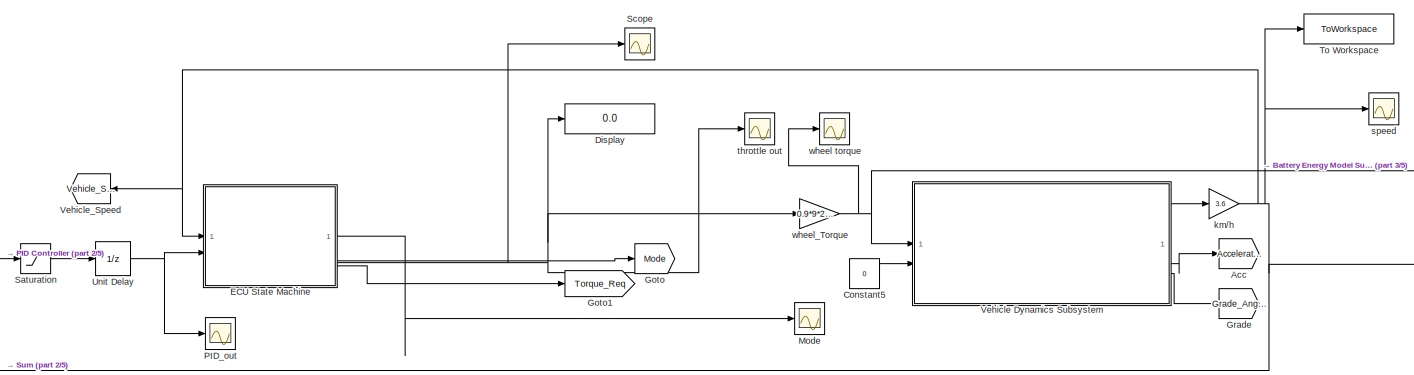
[diagram: root canvas - part 1/5, top center region]
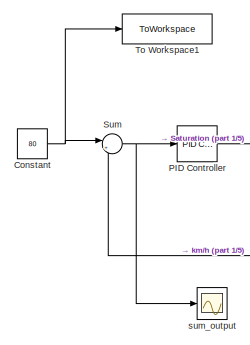
[diagram: root canvas - part 2/5, top left region]
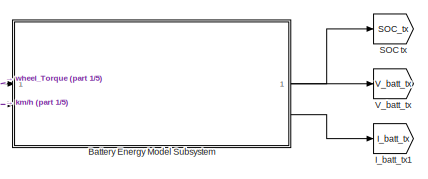
[diagram: root canvas - part 3/5, top right region]
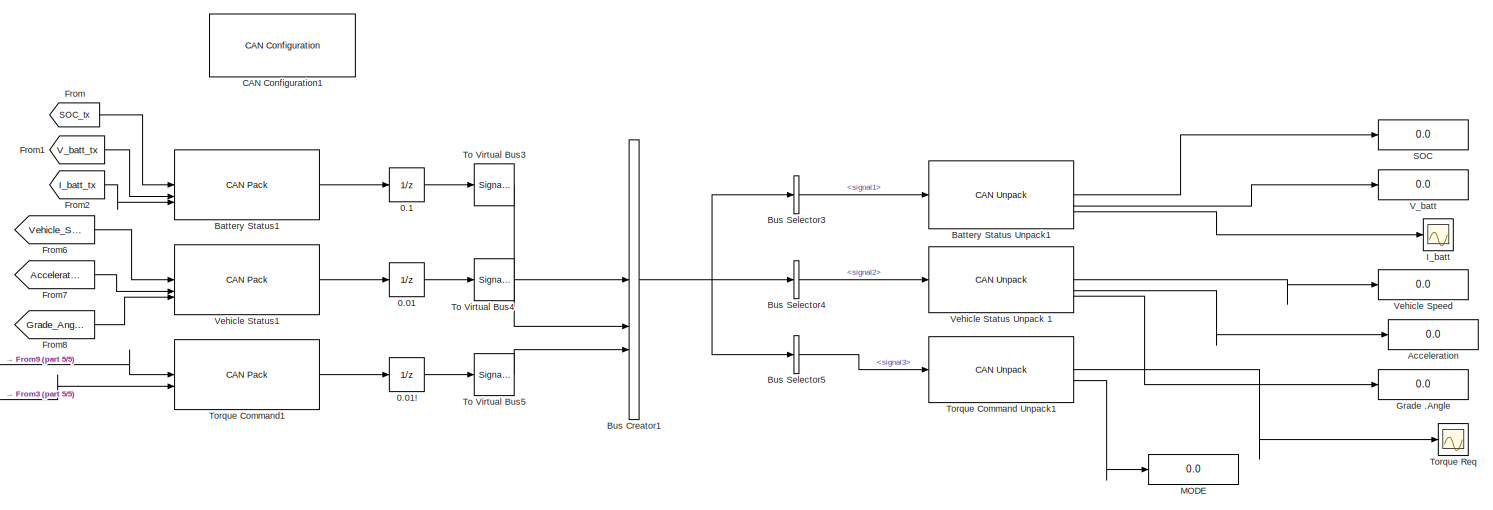
[diagram: root canvas - part 4/5, bottom center region]
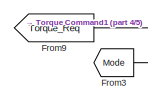
[diagram: root canvas - part 5/5, bottom left region]
MODEL slx_78d099251501
KIND model
CONFIG AbsTol = auto
CONFIG EnableMultiTasking = off
CONFIG FixedStep = 0.01
CONFIG MaxStep = auto
CONFIG MinStep = auto
CONFIG RelTol = 1e-3
CONFIG SampleTimeConstraint = Unconstrained
CONFIG SolverName = ode3
CONFIG StartTime = 0.0
CONFIG StopTime = 100
BLOCK [UnitDelay] 0.01
  HasFrameUpgradeWarning = on
  InitialCondition = 0.01
  SampleTime = -1
BLOCK [UnitDelay] 0.01!
  HasFrameUpgradeWarning = on
  InitialCondition = 0.1
  SampleTime = -1
BLOCK [UnitDelay] 0.1
  HasFrameUpgradeWarning = on
  InitialCondition = 0.1
  SampleTime = -1
BLOCK [Goto] Acc
  GotoTag = Acceleration
BLOCK [Display] Acceleration
  Decimation = 1
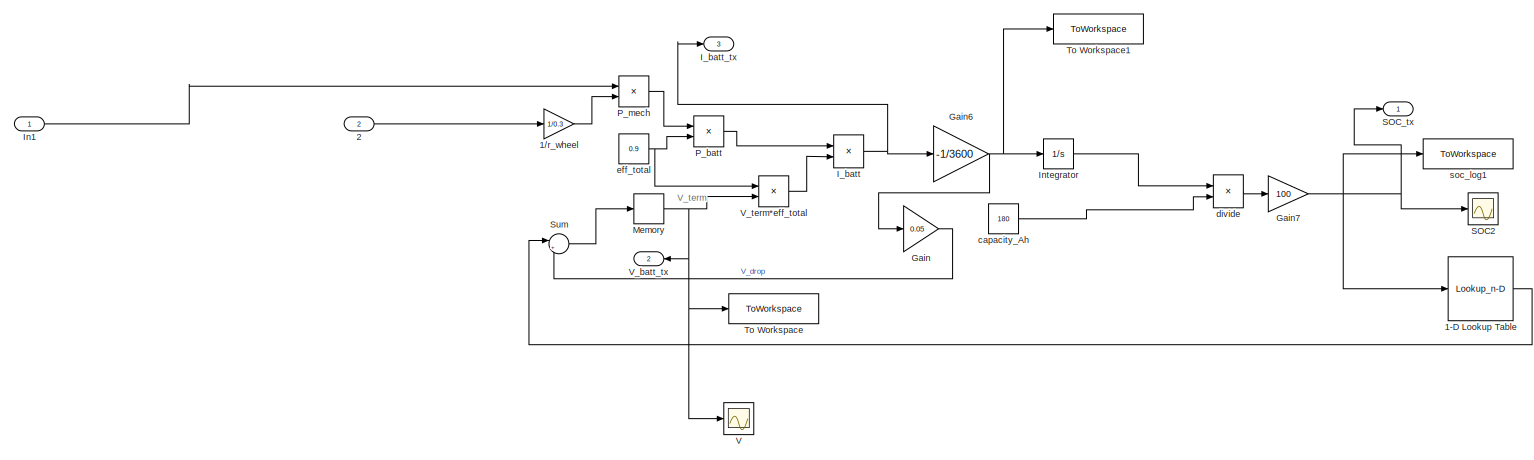
[diagram: Battery Energy Model Subsystem - part 1/1, most of the canvas]
BLOCK [SubSystem] Battery Energy Model Subsystem
BLOCK [Lookup_n-D] Battery Energy Model Subsystem/1-D Lookup Table
  BreakpointsForDimension1 = [10 20 40 60 80 100]
  InputPortMap = u0
  InternalRulePriority = Speed
  NumberOfTableDimensions = 1
  RndMeth = Simplest
  Table = [325 332 342 350 356 360]
BLOCK [Gain] Battery Energy Model Subsystem/1//r_wheel
  Gain = 1/0.3
BLOCK [Inport] Battery Energy Model Subsystem/2
  Port = 2
BLOCK [Gain] Battery Energy Model Subsystem/Gain
  Gain = 0.05
BLOCK [Gain] Battery Energy Model Subsystem/Gain6
  Gain = -1/3600
BLOCK [Gain] Battery Energy Model Subsystem/Gain7
  Gain = 100
BLOCK [Product] Battery Energy Model Subsystem/I_batt
  Inputs = */
  RndMeth = Zero
  SaturateOnIntegerOverflow = on
BLOCK [Outport] Battery Energy Model Subsystem/I_batt_tx
  Port = 3
BLOCK [Inport] Battery Energy Model Subsystem/In1
BLOCK [Integrator] Battery Energy Model Subsystem/Integrator
  InitialCondition = 180
BLOCK [Memory] Battery Energy Model Subsystem/Memory
  InitialCondition = 0.01
BLOCK [Product] Battery Energy Model Subsystem/P_batt
  Inputs = */
BLOCK [Product] Battery Energy Model Subsystem/P_mech
BLOCK [Scope] Battery Energy Model Subsystem/SOC2
  Floating = off
  NumInputPorts = 1
  ScopeSpecificationString = Simulink.scopes.TimeScopeBlockCfg('CurrentConfiguration', extmgr.ConfigurationSet(extmgr.Configuration('Core','General UI',true),extmgr.Configuration('Core','Source UI',true),extmgr.Configuration('Sources','WiredSimulink',true,'DataLoggingVariableName','ScopeData1'),extmgr.Configuration('Visuals','Time Domain',true,'SerializedDisplays',{struct('MinYLimReal','90.00000','MaxYLimReal','110.00000','YL...<+1408ch>
BLOCK [Outport] Battery Energy Model Subsystem/SOC_tx
BLOCK [Sum] Battery Energy Model Subsystem/Sum
  Inputs = |+-
BLOCK [ToWorkspace] Battery Energy Model Subsystem/To Workspace
  FixptAsFi = on
  MaxDataPoints = inf
  SampleTime = -1
  VariableName = Vterm_log
BLOCK [ToWorkspace] Battery Energy Model Subsystem/To Workspace1
  MaxDataPoints = inf
  SampleTime = -1
  VariableName = I_batt
BLOCK [Scope] Battery Energy Model Subsystem/V
  Floating = off
  NumInputPorts = 1
  ScopeSpecificationString = Simulink.scopes.TimeScopeBlockCfg('CurrentConfiguration', extmgr.ConfigurationSet(extmgr.Configuration('Core','General UI',true),extmgr.Configuration('Core','Source UI',true),extmgr.Configuration('Sources','WiredSimulink',true,'DataLoggingVariableName','ScopeData1'),extmgr.Configuration('Visuals','Time Domain',true,'SerializedDisplays',{struct('MinYLimReal','-44.98875','MaxYLimReal','404.99875','Y...<+1375ch>
BLOCK [Outport] Battery Energy Model Subsystem/V_batt_tx
  NameLocation = top
  Port = 2
BLOCK [Product] Battery Energy Model Subsystem/V_term*eff_total
BLOCK [Constant] Battery Energy Model Subsystem/capacity_Ah
  Value = 180
BLOCK [Product] Battery Energy Model Subsystem/divide
  Inputs = */
  RndMeth = Zero
  SaturateOnIntegerOverflow = on
BLOCK [Constant] Battery Energy Model Subsystem/eff_total
  Value = 0.9
BLOCK [ToWorkspace] Battery Energy Model Subsystem/soc_log1
  MaxDataPoints = inf
  SampleTime = -1
  VariableName = soc_log1
BLOCK [Reference] Battery Status Unpack1  REF=canmsglib/CAN Unpack
  LibrarySourceBlock = canlib/CAN Unpack
  SourceBlock = canmsglib/CAN Unpack
  SourceType = CAN Unpack
BLOCK [Reference] Battery Status1  REF=canmsglib/CAN Pack
  LibrarySourceBlock = canlib/CAN Pack
  SourceBlock = canmsglib/CAN Pack
  SourceType = CAN Pack
BLOCK [BusCreator] Bus Creator1
  DisplayOption = bar
  InheritFromInputs = on
  Inputs = 3
BLOCK [BusSelector] Bus Selector3
  OutputSignals = signal1
BLOCK [BusSelector] Bus Selector4
  OutputSignals = signal2
BLOCK [BusSelector] Bus Selector5
  OutputSignals = signal3
BLOCK [Reference] CAN Configuration1  REF=canlib/CAN Configuration
  SourceBlock = canlib/CAN Configuration
  SourceType = CAN Configuration
BLOCK [Constant] Constant
  Value = 80
BLOCK [Constant] Constant5
  Value = 0
BLOCK [Display] Display
  Decimation = 1
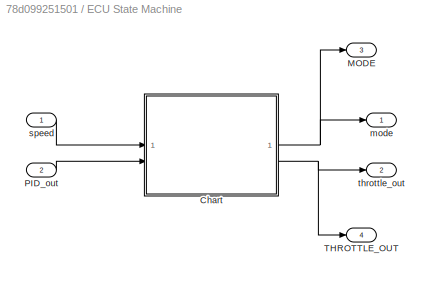
BLOCK [SubSystem] ECU State Machine
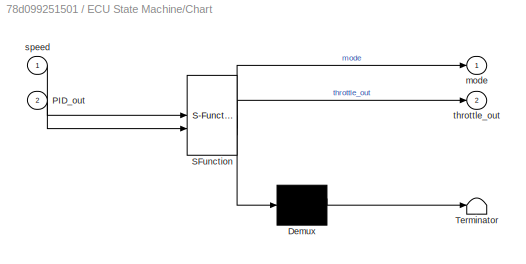
BLOCK [SubSystem] ECU State Machine/Chart
  ErrorFcn = Stateflow.Translate.translate
  PermitHierarchicalResolution = ExplicitOnly
  SFBlockType = Chart
  TreatAsAtomicUnit = on
BLOCK [Demux] ECU State Machine/Chart/ Demux 
  Outputs = 1
BLOCK [S-Function] ECU State Machine/Chart/ SFunction 
  EnableBusSupport = on
  FunctionName = sf_sfun
  PortCounts = [2 3]
  SFcnIsStateOwnerBlock = off
  SFunctionDeploymentMode = off
  Tag = Stateflow S-Function 3
BLOCK [Terminator] ECU State Machine/Chart/ Terminator 
BLOCK [Inport] ECU State Machine/Chart/PID_out
  Port = 2
BLOCK [Outport] ECU State Machine/Chart/mode
BLOCK [Inport] ECU State Machine/Chart/speed
BLOCK [Outport] ECU State Machine/Chart/throttle_out
  Port = 2
BLOCK [Outport] ECU State Machine/MODE
  Port = 3
BLOCK [Inport] ECU State Machine/PID_out
  Port = 2
BLOCK [Outport] ECU State Machine/THROTTLE_OUT
  Port = 4
BLOCK [Outport] ECU State Machine/mode
BLOCK [Inport] ECU State Machine/speed
BLOCK [Outport] ECU State Machine/throttle_out
  Port = 2
BLOCK [From] From
  GotoTag = SOC_tx
BLOCK [From] From1
  GotoTag = V_batt_tx
BLOCK [From] From2
  GotoTag = I_batt_tx
BLOCK [From] From3
  GotoTag = Mode
BLOCK [From] From6
  GotoTag = Vehicle_Speed
BLOCK [From] From7
  GotoTag = Acceleration
BLOCK [From] From8
  GotoTag = Grade_Angle
BLOCK [From] From9
  GotoTag = Torque_Req
BLOCK [Goto] Goto
  GotoTag = Mode
BLOCK [Goto] Goto1
  GotoTag = Torque_Req
BLOCK [Goto] Grade
  GotoTag = Grade_Angle
BLOCK [Display] Grade .Angle
  Decimation = 1
BLOCK [Scope] I_batt
  Floating = off
  NumInputPorts = 1
  ScopeSpecificationString = Simulink.scopes.TimeScopeBlockCfg('CurrentConfiguration', extmgr.ConfigurationSet(extmgr.Configuration('Core','General UI',true),extmgr.Configuration('Core','Source UI',true),extmgr.Configuration('Sources','WiredSimulink',true,'DataLoggingVariableName','ScopeData2'),extmgr.Configuration('Visuals','Time Domain',true,'SerializedDisplays',{struct('MinYLimReal','-55.54375','MaxYLimReal','499.89375','Y...<+1393ch>
BLOCK [Goto] I_batt_tx1
  GotoTag = I_batt_tx
BLOCK [Display] MODE
  Decimation = 1
BLOCK [Scope] Mode
  Floating = off
  NumInputPorts = 1
  ScopeSpecificationString = Simulink.scopes.TimeScopeBlockCfg('CurrentConfiguration', extmgr.ConfigurationSet(extmgr.Configuration('Core','General UI',true),extmgr.Configuration('Core','Source UI',true),extmgr.Configuration('Sources','WiredSimulink',true,'DataLoggingVariableName','ScopeData1'),extmgr.Configuration('Visuals','Time Domain',true,'SerializedDisplays',{struct('MinYLimReal','-0.375','MaxYLimReal','3.375','YLabelRe...<+1404ch>
BLOCK [Reference] PID Controller  REF=slpidlib/PID Controller
  LibrarySourceBlock = simulink/Continuous/PID Controller
  SourceBlock = slpidlib/PID Controller
  SourceType = PID 1dof
BLOCK [Scope] PID_out
  Floating = off
  NumInputPorts = 1
  ScopeSpecificationString = Simulink.scopes.TimeScopeBlockCfg('CurrentConfiguration', extmgr.ConfigurationSet(extmgr.Configuration('Core','General UI',true),extmgr.Configuration('Core','Source UI',true),extmgr.Configuration('Sources','WiredSimulink',true,'DataLoggingVariableName','ScopeData3'),extmgr.Configuration('Visuals','Time Domain',true,'SerializedDisplays',{struct('MinYLimReal','-0.125','MaxYLimReal','1.125','YLabelRe...<+1389ch>
BLOCK [Display] SOC
  Decimation = 1
BLOCK [Goto] SOC tx
  GotoTag = SOC_tx
BLOCK [Saturate] Saturation
  LowerLimit = 0
  UpperLimit = 1
BLOCK [Scope] Scope
  Floating = off
  NumInputPorts = 1
  ScopeSpecificationString = Simulink.scopes.TimeScopeBlockCfg('CurrentConfiguration', extmgr.ConfigurationSet(extmgr.Configuration('Core','General UI',true),extmgr.Configuration('Core','Source UI',true),extmgr.Configuration('Sources','WiredSimulink',true,'DataLoggingVariableName','ScopeData1'),extmgr.Configuration('Visuals','Time Domain',true,'SerializedDisplays',{struct('MinYLimReal','-0.125','MaxYLimReal','1.125','YLabelRe...<+1377ch>
BLOCK [Sum] Sum
  Inputs = |+-
BLOCK [SignalConversion] To Virtual Bus3
  ConversionOutput = Nonvirtual bus
  OverrideOpt = off
BLOCK [SignalConversion] To Virtual Bus4
  ConversionOutput = Nonvirtual bus
  OverrideOpt = off
BLOCK [SignalConversion] To Virtual Bus5
  ConversionOutput = Nonvirtual bus
  OverrideOpt = off
BLOCK [ToWorkspace] To Workspace
  FixptAsFi = on
  MaxDataPoints = inf
  SampleTime = -1
  SaveFormat = Timeseries
  VariableName = Vehicle_Speed
BLOCK [ToWorkspace] To Workspace1
  FixptAsFi = on
  MaxDataPoints = inf
  SampleTime = -1
  SaveFormat = Timeseries
  VariableName = Speed_ref
BLOCK [Reference] Torque Command Unpack1  REF=canmsglib/CAN Unpack
  LibrarySourceBlock = canlib/CAN Unpack
  SourceBlock = canmsglib/CAN Unpack
  SourceType = CAN Unpack
BLOCK [Reference] Torque Command1  REF=canmsglib/CAN Pack
  LibrarySourceBlock = canlib/CAN Pack
  SourceBlock = canmsglib/CAN Pack
  SourceType = CAN Pack
BLOCK [Scope] Torque Req
  Floating = off
  NumInputPorts = 1
  ScopeSpecificationString = Simulink.scopes.TimeScopeBlockCfg('CurrentConfiguration', extmgr.ConfigurationSet(extmgr.Configuration('Core','General UI',true),extmgr.Configuration('Core','Source UI',true),extmgr.Configuration('Sources','WiredSimulink',true,'DataLoggingVariableName','ScopeData4'),extmgr.Configuration('Visuals','Time Domain',true,'SerializedDisplays',{struct('MinYLimReal','-0.125','MaxYLimReal','1.125','YLabelRe...<+1439ch>
BLOCK [UnitDelay] Unit Delay
  HasFrameUpgradeWarning = on
  SampleTime = 0.01
BLOCK [Display] V_batt
  Decimation = 1
BLOCK [Goto] V_batt_tx
  GotoTag = V_batt_tx
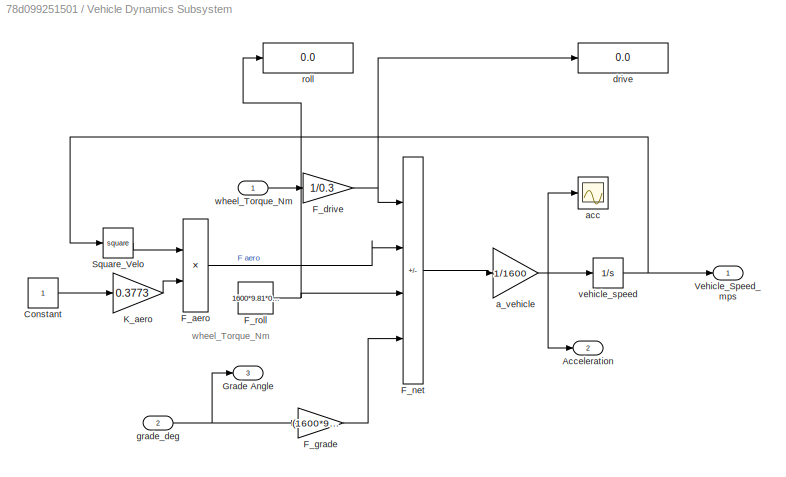
BLOCK [SubSystem] Vehicle Dynamics Subsystem
BLOCK [Outport] Vehicle Dynamics Subsystem/Acceleration
  Port = 2
BLOCK [Constant] Vehicle Dynamics Subsystem/Constant
BLOCK [Product] Vehicle Dynamics Subsystem/F_aero
BLOCK [Gain] Vehicle Dynamics Subsystem/F_drive
  Gain = 1/0.3
BLOCK [Gain] Vehicle Dynamics Subsystem/F_grade
  Gain = (1600*9.81)/100
BLOCK [Sum] Vehicle Dynamics Subsystem/F_net
  IconShape = rectangular
  Inputs = +---
BLOCK [Constant] Vehicle Dynamics Subsystem/F_roll
  Value = 1600*9.81*0.015
BLOCK [Outport] Vehicle Dynamics Subsystem/Grade Angle
  Port = 3
BLOCK [Gain] Vehicle Dynamics Subsystem/K_aero
  Gain = 0.3773
BLOCK [Math] Vehicle Dynamics Subsystem/Square_Velo
  Operator = square
BLOCK [Outport] Vehicle Dynamics Subsystem/Vehicle_Speed_mps
BLOCK [Gain] Vehicle Dynamics Subsystem/a_vehicle
  Gain = 1/1600
BLOCK [Scope] Vehicle Dynamics Subsystem/acc
  Floating = off
  NumInputPorts = 1
  ScopeSpecificationString = Simulink.scopes.TimeScopeBlockCfg('CurrentConfiguration', extmgr.ConfigurationSet(extmgr.Configuration('Core','General UI',true),extmgr.Configuration('Core','Source UI',true),extmgr.Configuration('Sources','WiredSimulink',true),extmgr.Configuration('Visuals','Time Domain',true,'SerializedDisplays',{struct('MinYLimReal','-0.14886','MaxYLimReal','-0.13177','YLabelReal','','MinYLimMag','0.00000','Max...<+1362ch>
BLOCK [Display] Vehicle Dynamics Subsystem/drive
  Decimation = 1
BLOCK [Inport] Vehicle Dynamics Subsystem/grade_deg
  Port = 2
BLOCK [Display] Vehicle Dynamics Subsystem/roll
  Decimation = 1
BLOCK [Integrator] Vehicle Dynamics Subsystem/vehicle_speed
BLOCK [Inport] Vehicle Dynamics Subsystem/wheel_Torque_Nm
BLOCK [Display] Vehicle Speed
  Decimation = 1
BLOCK [Reference] Vehicle Status Unpack 1  REF=canmsglib/CAN Unpack
  LibrarySourceBlock = canlib/CAN Unpack
  SourceBlock = canmsglib/CAN Unpack
  SourceType = CAN Unpack
BLOCK [Reference] Vehicle Status1  REF=canmsglib/CAN Pack
  LibrarySourceBlock = canlib/CAN Pack
  SourceBlock = canmsglib/CAN Pack
  SourceType = CAN Pack
BLOCK [Goto] Vehicle_Speed
  GotoTag = Vehicle_Speed
  NameLocation = top
BLOCK [Gain] km//h
  Gain = 3.6
BLOCK [Scope] speed
  Floating = off
  NumInputPorts = 1
  ScopeSpecificationString = Simulink.scopes.TimeScopeBlockCfg('CurrentConfiguration', extmgr.ConfigurationSet(extmgr.Configuration('Core','General UI',true),extmgr.Configuration('Core','Source UI',true),extmgr.Configuration('Sources','WiredSimulink',true,'DataLoggingVariableName','ScopeData3'),extmgr.Configuration('Visuals','Time Domain',true,'SerializedDisplays',{struct('MinYLimReal','-10.61584','MaxYLimReal','95.48959','YL...<+1724ch>
BLOCK [Scope] sum_output
  Floating = off
  NumInputPorts = 1
  ScopeSpecificationString = Simulink.scopes.TimeScopeBlockCfg('CurrentConfiguration', extmgr.ConfigurationSet(extmgr.Configuration('Core','General UI',true),extmgr.Configuration('Core','Source UI',true),extmgr.Configuration('Sources','WiredSimulink',true,'DataLoggingVariableName','ScopeData2'),extmgr.Configuration('Visuals','Time Domain',true,'SerializedDisplays',{struct('MinYLimReal','-18.32727','MaxYLimReal','90.93114','YL...<+1401ch>
BLOCK [Scope] throttle out
  Floating = off
  NumInputPorts = 1
  ScopeSpecificationString = Simulink.scopes.TimeScopeBlockCfg('CurrentConfiguration', extmgr.ConfigurationSet(extmgr.Configuration('Core','General UI',true),extmgr.Configuration('Core','Source UI',true),extmgr.Configuration('Sources','WiredSimulink',true,'DataLoggingVariableName','ScopeData1'),extmgr.Configuration('Visuals','Time Domain',true,'SerializedDisplays',{struct('MinYLimReal','-0.00742','MaxYLimReal','0.06678','YLab...<+1445ch>
BLOCK [Scope] wheel torque
  Floating = off
  NumInputPorts = 1
  ScopeSpecificationString = Simulink.scopes.TimeScopeBlockCfg('CurrentConfiguration', extmgr.ConfigurationSet(extmgr.Configuration('Core','General UI',true),extmgr.Configuration('Core','Source UI',true),extmgr.Configuration('Sources','WiredSimulink',true,'DataLoggingVariableName','ScopeData2'),extmgr.Configuration('Visuals','Time Domain',true,'SerializedDisplays',{struct('MinYLimReal','-12.02094','MaxYLimReal','108.18846','Y...<+1414ch>
BLOCK [Gain] wheel_Torque
  Gain = 0.9*9*200
ANNOTATION Battery Energy Model Subsystem: V_term
ANNOTATION Vehicle Dynamics Subsystem: wheel_Torque_Nm
LINE 0.01!:1 -> To Virtual Bus5:1
LINE 0.01:1 -> To Virtual Bus4:1
LINE 0.1:1 -> To Virtual Bus3:1
LINE Battery Energy Model Subsystem/1-D Lookup Table:1 -> Battery Energy Model Subsystem/Sum:1
LINE Battery Energy Model Subsystem/1//r_wheel:1 -> Battery Energy Model Subsystem/P_mech:2
LINE Battery Energy Model Subsystem/2:1 -> Battery Energy Model Subsystem/1//r_wheel:1
NET Battery Energy Model Subsystem/Gain6:1 -> Battery Energy Model Subsystem/Gain:1, Battery Energy Model Subsystem/Integrator:1, Battery Energy Model Subsystem/To Workspace1:1
NET Battery Energy Model Subsystem/Gain7:1 -> Battery Energy Model Subsystem/1-D Lookup Table:1, Battery Energy Model Subsystem/SOC2:1, Battery Energy Model Subsystem/SOC_tx:1, Battery Energy Model Subsystem/soc_log1:1
LINE Battery Energy Model Subsystem/Gain:1 -> Battery Energy Model Subsystem/Sum:2
NET Battery Energy Model Subsystem/I_batt:1 -> Battery Energy Model Subsystem/Gain6:1, Battery Energy Model Subsystem/I_batt_tx:1
LINE Battery Energy Model Subsystem/In1:1 -> Battery Energy Model Subsystem/P_mech:1
LINE Battery Energy Model Subsystem/Integrator:1 -> Battery Energy Model Subsystem/divide:1
NET Battery Energy Model Subsystem/Memory:1 -> Battery Energy Model Subsystem/To Workspace:1, Battery Energy Model Subsystem/V:1, Battery Energy Model Subsystem/V_batt_tx:1, Battery Energy Model Subsystem/V_term*eff_total:2
LINE Battery Energy Model Subsystem/P_batt:1 -> Battery Energy Model Subsystem/I_batt:1
LINE Battery Energy Model Subsystem/P_mech:1 -> Battery Energy Model Subsystem/P_batt:1
LINE Battery Energy Model Subsystem/Sum:1 -> Battery Energy Model Subsystem/Memory:1
LINE Battery Energy Model Subsystem/V_term*eff_total:1 -> Battery Energy Model Subsystem/I_batt:2
LINE Battery Energy Model Subsystem/capacity_Ah:1 -> Battery Energy Model Subsystem/divide:2
LINE Battery Energy Model Subsystem/divide:1 -> Battery Energy Model Subsystem/Gain7:1
NET Battery Energy Model Subsystem/eff_total:1 -> Battery Energy Model Subsystem/P_batt:2, Battery Energy Model Subsystem/V_term*eff_total:1
LINE Battery Energy Model Subsystem:1 -> SOC tx:1
LINE Battery Energy Model Subsystem:2 -> V_batt_tx:1
LINE Battery Energy Model Subsystem:3 -> I_batt_tx1:1
LINE Battery Status Unpack1:1 -> SOC:1
LINE Battery Status Unpack1:2 -> V_batt:1
LINE Battery Status Unpack1:3 -> I_batt:1
LINE Battery Status1:1 -> 0.1:1
NET Bus Creator1:1 -> Bus Selector3:1, Bus Selector4:1, Bus Selector5:1
LINE Bus Selector3:1 -> Battery Status Unpack1:1
LINE Bus Selector4:1 -> Vehicle Status Unpack 1:1
LINE Bus Selector5:1 -> Torque Command Unpack1:1
LINE Constant5:1 -> Vehicle Dynamics Subsystem:2
NET Constant:1 -> Sum:1, To Workspace1:1
NET ECU State Machine/Chart:1 -> ECU State Machine/MODE:1, ECU State Machine/mode:1
NET ECU State Machine/Chart:2 -> ECU State Machine/THROTTLE_OUT:1, ECU State Machine/throttle_out:1
LINE ECU State Machine/PID_out:1 -> ECU State Machine/Chart:2
LINE ECU State Machine/speed:1 -> ECU State Machine/Chart:1
LINE ECU State Machine:1 -> Mode:1
NET ECU State Machine:2 -> Display:1, Scope:1, throttle out:1, wheel_Torque:1
LINE ECU State Machine:3 -> Goto:1
LINE ECU State Machine:4 -> Goto1:1
LINE From1:1 -> Battery Status1:2
LINE From2:1 -> Battery Status1:3
LINE From3:1 -> Torque Command1:2
LINE From6:1 -> Vehicle Status1:1
LINE From7:1 -> Vehicle Status1:2
LINE From8:1 -> Vehicle Status1:3
LINE From9:1 -> Torque Command1:1
LINE From:1 -> Battery Status1:1
LINE PID Controller:1 -> Saturation:1
LINE Saturation:1 -> Unit Delay:1
NET Sum:1 -> PID Controller:1, sum_output:1
LINE To Virtual Bus3:1 -> Bus Creator1:1
LINE To Virtual Bus4:1 -> Bus Creator1:2
LINE To Virtual Bus5:1 -> Bus Creator1:3
LINE Torque Command Unpack1:1 -> Torque Req:1
LINE Torque Command Unpack1:2 -> MODE:1
LINE Torque Command1:1 -> 0.01!:1
NET Unit Delay:1 -> ECU State Machine:2, PID_out:1
LINE Vehicle Dynamics Subsystem/Constant:1 -> Vehicle Dynamics Subsystem/K_aero:1
LINE Vehicle Dynamics Subsystem/F_aero:1 -> Vehicle Dynamics Subsystem/F_net:2
NET Vehicle Dynamics Subsystem/F_drive:1 -> Vehicle Dynamics Subsystem/F_net:1, Vehicle Dynamics Subsystem/drive:1
LINE Vehicle Dynamics Subsystem/F_grade:1 -> Vehicle Dynamics Subsystem/F_net:4
LINE Vehicle Dynamics Subsystem/F_net:1 -> Vehicle Dynamics Subsystem/a_vehicle:1
NET Vehicle Dynamics Subsystem/F_roll:1 -> Vehicle Dynamics Subsystem/F_net:3, Vehicle Dynamics Subsystem/roll:1
LINE Vehicle Dynamics Subsystem/K_aero:1 -> Vehicle Dynamics Subsystem/F_aero:2
LINE Vehicle Dynamics Subsystem/Square_Velo:1 -> Vehicle Dynamics Subsystem/F_aero:1
NET Vehicle Dynamics Subsystem/a_vehicle:1 -> Vehicle Dynamics Subsystem/Acceleration:1, Vehicle Dynamics Subsystem/acc:1, Vehicle Dynamics Subsystem/vehicle_speed:1
NET Vehicle Dynamics Subsystem/grade_deg:1 -> Vehicle Dynamics Subsystem/F_grade:1, Vehicle Dynamics Subsystem/Grade Angle:1
NET Vehicle Dynamics Subsystem/vehicle_speed:1 -> Vehicle Dynamics Subsystem/Square_Velo:1, Vehicle Dynamics Subsystem/Vehicle_Speed_mps:1
LINE Vehicle Dynamics Subsystem/wheel_Torque_Nm:1 -> Vehicle Dynamics Subsystem/F_drive:1
LINE Vehicle Dynamics Subsystem:1 -> km//h:1
LINE Vehicle Dynamics Subsystem:2 -> Acc:1
LINE Vehicle Dynamics Subsystem:3 -> Grade:1
LINE Vehicle Status Unpack 1:1 -> Vehicle Speed:1
LINE Vehicle Status Unpack 1:2 -> Acceleration:1
LINE Vehicle Status Unpack 1:3 -> Grade .Angle:1
LINE Vehicle Status1:1 -> 0.01:1
NET km//h:1 -> Battery Energy Model Subsystem:2, ECU State Machine:1, Sum:2, To Workspace:1, Vehicle_Speed:1, speed:1
NET wheel_Torque:1 -> Battery Energy Model Subsystem:1, Vehicle Dynamics Subsystem:1, wheel torque:1
note: NET lines group one-source signal fan-out (src -> all destinations, sorted); 1:1 wires keep LINE
CHART ECU State Machine/Chart states=4 transitions=6
  STATE_LABEL 'Idle\nentry:\nmode=0;\n\nthrottle_out=0;\n'
  STATE_LABEL 'Acceleration\nentry:\nmode=1;\n\nthrottle_out=PID_out;'
  STATE_LABEL 'Cruise\nentry:\nmode=2\n\nthrottle_out=PID_out;'
  STATE_LABEL 'Deceleration\nentry:\nmode=3;\n\nthrottle_out=0;'
CHART  states=0 transitions=0
